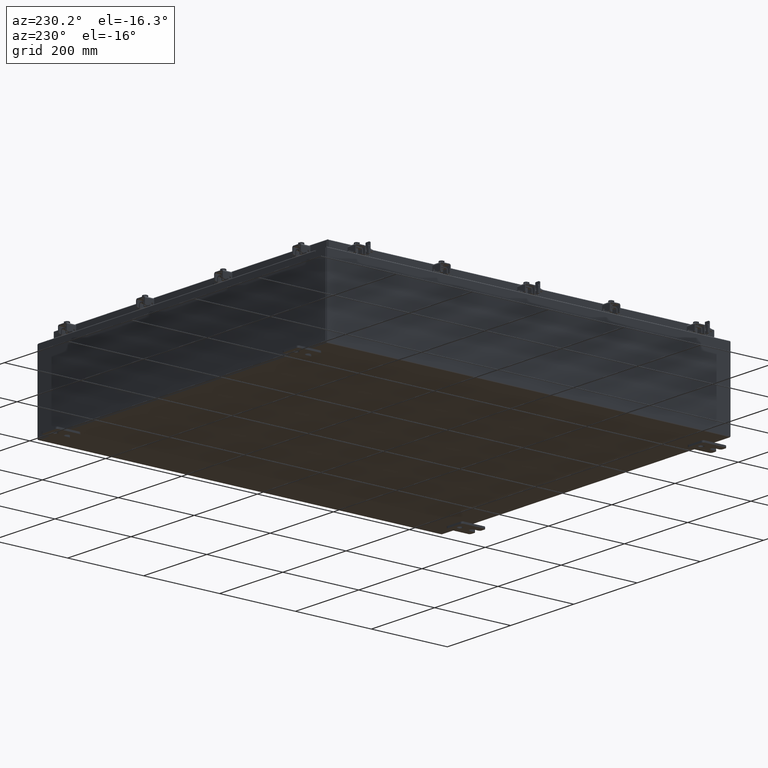
[diagram: clean part render]
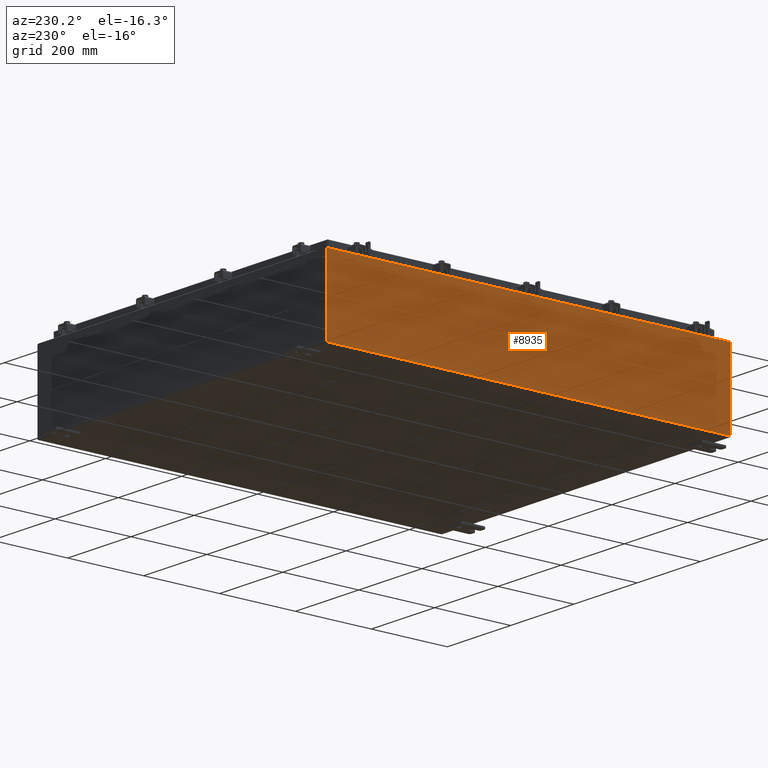
[diagram: same view with one face highlighted and labeled with its STEP entity id]
A machine part, auxiliary view. The second image highlights one B-rep face of the part: STEP entity #8935.
In plain terms, the highlighted planar face has unit normal (1, 0, 0).
Its self-contained STEP definition (entity closure, byte-faithful):
#317 = DIRECTION ( 'NONE',  ( -0.0000000000000000000, 1.000000000000000000, -0.0000000000000000000 ) ) ;
#672 = ORIENTED_EDGE ( 'NONE', *, *, #22878, .T. ) ;
#684 = DIRECTION ( 'NONE',  ( 0.0000000000000000000, 1.000000000000000000, 0.0000000000000000000 ) ) ;
#2396 = DIRECTION ( 'NONE',  ( 3.584876173029202900E-015, 0.0000000000000000000, -1.000000000000000000 ) ) ;
#2534 = VECTOR ( 'NONE', #12606, 39.37007874015748100 ) ;
#3674 = AXIS2_PLACEMENT_3D ( 'NONE', #22615, #7914, #22714 ) ;
#4460 = ORIENTED_EDGE ( 'NONE', *, *, #14763, .T. ) ;
#4914 = CARTESIAN_POINT ( 'NONE',  ( -17.99999999999999600, 20.92529999999999600, 0.01299999999999983600 ) ) ;
#6839 = LINE ( 'NONE', #17127, #11802 ) ;
#7914 = DIRECTION ( 'NONE',  ( 1.000000000000000000, 0.0000000000000000000, 3.584876173029202900E-015 ) ) ;
#8935 = ADVANCED_FACE ( 'NONE', ( #16252 ), #20582, .F. ) ;
#10805 = LINE ( 'NONE', #17140, #22072 ) ;
#11100 = CARTESIAN_POINT ( 'NONE',  ( -18.00000000000002500, 20.92529999999999600, 7.837599999999999200 ) ) ;
#11802 = VECTOR ( 'NONE', #2396, 39.37007874015748100 ) ;
#11978 = CARTESIAN_POINT ( 'NONE',  ( -17.99999999999999600, -20.92529999999999300, 0.01299999999999984700 ) ) ;
#12605 = EDGE_CURVE ( 'NONE', #23082, #18803, #6839, .T. ) ;
#12606 = DIRECTION ( 'NONE',  ( -3.584876173029202900E-015, 0.0000000000000000000, 1.000000000000000000 ) ) ;
#12763 = CARTESIAN_POINT ( 'NONE',  ( -18.00000000000002500, -20.92529999999999300, 7.837599999999999200 ) ) ;
#14407 = VECTOR ( 'NONE', #684, 39.37007874015748100 ) ;
#14763 = EDGE_CURVE ( 'NONE', #21765, #23082, #16384, .T. ) ;
#16252 = FACE_OUTER_BOUND ( 'NONE', #22051, .T. ) ;
#16384 = LINE ( 'NONE', #25881, #14407 ) ;
#17127 = CARTESIAN_POINT ( 'NONE',  ( -17.99999999999999600, 20.92529999999999600, -6.478858477053722900E-014 ) ) ;
#17140 = CARTESIAN_POINT ( 'NONE',  ( -17.99999999999999600, 20.92529999999999600, 0.01299999999999984700 ) ) ;
#18803 = VERTEX_POINT ( 'NONE', #4914 ) ;
#19508 = ORIENTED_EDGE ( 'NONE', *, *, #12605, .T. ) ;
#20582 = PLANE ( 'NONE',  #3674 ) ;
#20838 = EDGE_CURVE ( 'NONE', #24063, #18803, #10805, .T. ) ;
#21436 = ORIENTED_EDGE ( 'NONE', *, *, #20838, .F. ) ;
#21765 = VERTEX_POINT ( 'NONE', #12763 ) ;
#22051 = EDGE_LOOP ( 'NONE', ( #4460, #19508, #21436, #672 ) ) ;
#22072 = VECTOR ( 'NONE', #317, 39.37007874015748100 ) ;
#22615 = CARTESIAN_POINT ( 'NONE',  ( -17.99999999999999600, 0.0000000000000000000, -6.478858477053722900E-014 ) ) ;
#22714 = DIRECTION ( 'NONE',  ( 3.584876173029202900E-015, 0.0000000000000000000, -1.000000000000000000 ) ) ;
#22878 = EDGE_CURVE ( 'NONE', #24063, #21765, #24945, .T. ) ;
#23082 = VERTEX_POINT ( 'NONE', #11100 ) ;
#23138 = CARTESIAN_POINT ( 'NONE',  ( -17.99999999999999600, -20.92530000000000400, -6.478858477053722900E-014 ) ) ;
#24063 = VERTEX_POINT ( 'NONE', #11978 ) ;
#24945 = LINE ( 'NONE', #23138, #2534 ) ;
#25881 = CARTESIAN_POINT ( 'NONE',  ( -18.00000000000002500, -20.92529999999999600, 7.837599999999999200 ) ) ;